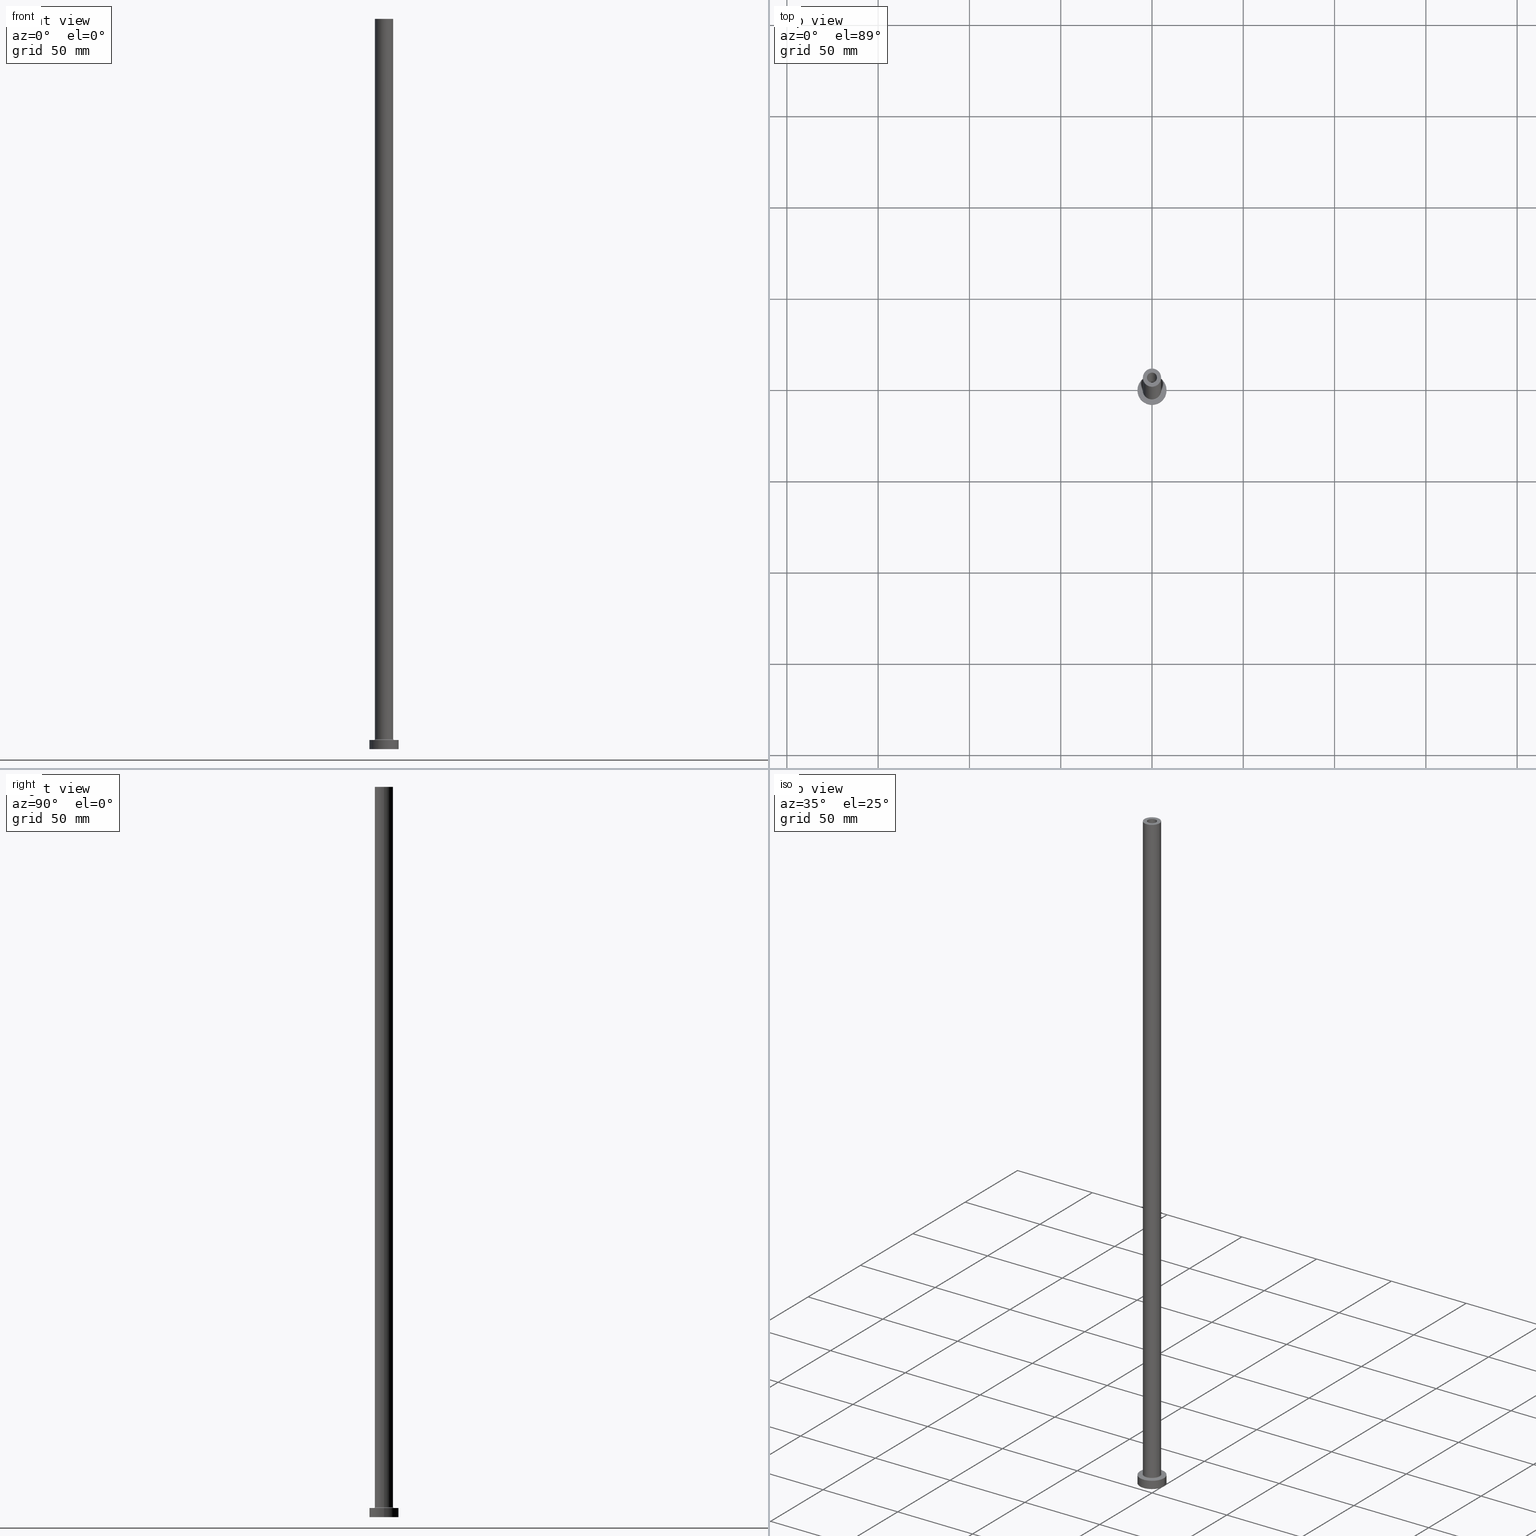
[diagram: canonical four-view strip — front | top / right | iso, engineering-drawing reading convention]
A machine part, canonical four-view strip (front | top / right | iso — engineering-drawing reading convention). The complete STEP part file that produces these views, byte-faithful:
ISO-10303-21;
HEADER;
FILE_DESCRIPTION (( 'STEP AP203' ),
    '1' );
FILE_NAME ('908a.STEP',
    '2023-02-13T16:12:54',
    ( '' ),
    ( '' ),
    'SwSTEP 2.0',
    'SolidWorks 2019',
    '' );
FILE_SCHEMA (( 'CONFIG_CONTROL_DESIGN' ));
ENDSEC;

DATA;
#1 = APPROVAL_ROLE ( '' ) ;
#2 = EDGE_LOOP ( 'NONE', ( #441, #38 ) ) ;
#3 = DIRECTION ( 'NONE',  ( -0.000000000000000000, -0.000000000000000000, -1.000000000000000000 ) ) ;
#4 = EDGE_LOOP ( 'NONE', ( #385, #153, #249, #202 ) ) ;
#5 = CARTESIAN_POINT ( 'NONE',  ( -2.750000000000000000, 0.000000000000000000, 400.0000000000000000 ) ) ;
#6 = DIRECTION ( 'NONE',  ( 1.000000000000000000, 0.000000000000000000, 0.000000000000000000 ) ) ;
#7 = CARTESIAN_POINT ( 'NONE',  ( 2.899999999999999911, 3.551475717527323832E-16, 355.0000000000000568 ) ) ;
#8 = LINE ( 'NONE', #43, #360 ) ;
#9 = ORIENTED_EDGE ( 'NONE', *, *, #185, .T. ) ;
#10 = EDGE_CURVE ( 'NONE', #380, #13, #144, .T. ) ;
#11 = AXIS2_PLACEMENT_3D ( 'NONE', #244, #3, #451 ) ;
#12 = CC_DESIGN_APPROVAL ( #203, ( #171 ) ) ;
#13 = VERTEX_POINT ( 'NONE', #7 ) ;
#14 = VERTEX_POINT ( 'NONE', #119 ) ;
#15 = DIRECTION ( 'NONE',  ( 0.000000000000000000, 0.000000000000000000, -1.000000000000000000 ) ) ;
#16 = DIRECTION ( 'NONE',  ( 1.000000000000000000, 0.000000000000000000, 0.000000000000000000 ) ) ;
#17 = AXIS2_PLACEMENT_3D ( 'NONE', #148, #214, #330 ) ;
#18 = EDGE_CURVE ( 'NONE', #273, #14, #404, .T. ) ;
#19 = VECTOR ( 'NONE', #169, 1000.000000000000000 ) ;
#20 = CARTESIAN_POINT ( 'NONE',  ( -2.750000000000000000, 0.000000000000000000, 355.0000000000000568 ) ) ;
#21 = CARTESIAN_POINT ( 'NONE',  ( 2.899999999999999911, 3.551475717527323832E-16, 0.000000000000000000 ) ) ;
#22 = EDGE_CURVE ( 'NONE', #273, #256, #359, .T. ) ;
#23 = AXIS2_PLACEMENT_3D ( 'NONE', #63, #342, #272 ) ;
#24 = CARTESIAN_POINT ( 'NONE',  ( 0.000000000000000000, 0.000000000000000000, 400.0000000000000000 ) ) ;
#25 = PERSON_AND_ORGANIZATION_ROLE ( 'classification_officer' ) ;
#26 = DIRECTION ( 'NONE',  ( 0.000000000000000000, 0.000000000000000000, 1.000000000000000000 ) ) ;
#27 = ORIENTED_EDGE ( 'NONE', *, *, #125, .F. ) ;
#28 =( LENGTH_UNIT ( ) NAMED_UNIT ( * ) SI_UNIT ( .MILLI., .METRE. ) );
#29 = CARTESIAN_POINT ( 'NONE',  ( 0.000000000000000000, 0.000000000000000000, 0.000000000000000000 ) ) ;
#30 = EDGE_LOOP ( 'NONE', ( #154, #150, #143, #242 ) ) ;
#31 = ADVANCED_FACE ( 'NONE', ( #438, #397 ), #251, .T. ) ;
#32 = CARTESIAN_POINT ( 'NONE',  ( -5.000000000000000000, 0.000000000000000000, 400.0000000000000000 ) ) ;
#33 = ORIENTED_EDGE ( 'NONE', *, *, #10, .F. ) ;
#34 = APPROVAL_PERSON_ORGANIZATION ( #347, #203, #1 ) ;
#35 = PERSON_AND_ORGANIZATION ( #285, #232 ) ;
#36 = ORIENTED_EDGE ( 'NONE', *, *, #356, .F. ) ;
#37 = EDGE_CURVE ( 'NONE', #13, #380, #149, .T. ) ;
#38 = ORIENTED_EDGE ( 'NONE', *, *, #427, .T. ) ;
#39 = FACE_OUTER_BOUND ( 'NONE', #328, .T. ) ;
#40 = AXIS2_PLACEMENT_3D ( 'NONE', #90, #226, #334 ) ;
#41 = VECTOR ( 'NONE', #413, 1000.000000000000000 ) ;
#42 = DIRECTION ( 'NONE',  ( 0.000000000000000000, 0.000000000000000000, 1.000000000000000000 ) ) ;
#43 = CARTESIAN_POINT ( 'NONE',  ( 8.000000000000000000, 9.797174393178825657E-16, 5.000000000000000000 ) ) ;
#44 = EDGE_CURVE ( 'NONE', #235, #278, #47, .T. ) ;
#45 = FACE_OUTER_BOUND ( 'NONE', #392, .T. ) ;
#46 = DIRECTION ( 'NONE',  ( -1.000000000000000000, 0.000000000000000000, 0.000000000000000000 ) ) ;
#47 = CIRCLE ( 'NONE', #263, 2.750000000000000000 ) ;
#48 = AXIS2_PLACEMENT_3D ( 'NONE', #29, #133, #142 ) ;
#49 = CIRCLE ( 'NONE', #157, 5.000000000000000000 ) ;
#50 = FACE_OUTER_BOUND ( 'NONE', #30, .T. ) ;
#51 = ORIENTED_EDGE ( 'NONE', *, *, #22, .T. ) ;
#52 = CARTESIAN_POINT ( 'NONE',  ( 0.000000000000000000, 0.000000000000000000, 0.000000000000000000 ) ) ;
#53 = DATE_AND_TIME ( #92, #193 ) ;
#54 = CIRCLE ( 'NONE', #236, 2.750000000000000000 ) ;
#55 = FACE_BOUND ( 'NONE', #2, .T. ) ;
#56 = TOROIDAL_SURFACE ( 'NONE', #74, 5.500000000000000000, 0.5000000000000000000 ) ;
#57 = ADVANCED_FACE ( 'NONE', ( #369 ), #212, .T. ) ;
#58 = CARTESIAN_POINT ( 'NONE',  ( 0.000000000000000000, 0.000000000000000000, 400.0000000000000000 ) ) ;
#59 = CARTESIAN_POINT ( 'NONE',  ( 0.000000000000000000, 0.000000000000000000, 5.000000000000000000 ) ) ;
#60 = AXIS2_PLACEMENT_3D ( 'NONE', #259, #364, #291 ) ;
#61 = DIRECTION ( 'NONE',  ( 0.000000000000000000, 0.000000000000000000, 1.000000000000000000 ) ) ;
#62 = PERSON_AND_ORGANIZATION ( #285, #232 ) ;
#63 = CARTESIAN_POINT ( 'NONE',  ( 0.000000000000000000, 0.000000000000000000, 400.0000000000000000 ) ) ;
#64 = EDGE_LOOP ( 'NONE', ( #350, #430 ) ) ;
#65 = FACE_OUTER_BOUND ( 'NONE', #317, .T. ) ;
#66 = DIRECTION ( 'NONE',  ( 1.000000000000000000, 0.000000000000000000, 0.000000000000000000 ) ) ;
#67 = ADVANCED_FACE ( 'NONE', ( #39 ), #79, .T. ) ;
#68 = ORIENTED_EDGE ( 'NONE', *, *, #160, .F. ) ;
#69 =( NAMED_UNIT ( * ) PLANE_ANGLE_UNIT ( ) SI_UNIT ( $, .RADIAN. ) );
#70 = VERTEX_POINT ( 'NONE', #113 ) ;
#71 = DIRECTION ( 'NONE',  ( 0.000000000000000000, 0.000000000000000000, -1.000000000000000000 ) ) ;
#72 = EDGE_LOOP ( 'NONE', ( #286, #107, #9, #261 ) ) ;
#73 = CIRCLE ( 'NONE', #292, 8.000000000000000000 ) ;
#74 = AXIS2_PLACEMENT_3D ( 'NONE', #302, #61, #456 ) ;
#75 = ORIENTED_EDGE ( 'NONE', *, *, #87, .F. ) ;
#76 = EDGE_CURVE ( 'NONE', #13, #357, #326, .T. ) ;
#77 = CARTESIAN_POINT ( 'NONE',  ( 0.000000000000000000, 0.000000000000000000, 400.0000000000000000 ) ) ;
#78 = CARTESIAN_POINT ( 'NONE',  ( -2.750000000000000000, 0.000000000000000000, 400.0000000000000000 ) ) ;
#79 = CYLINDRICAL_SURFACE ( 'NONE', #195, 8.000000000000000000 ) ;
#80 = AXIS2_PLACEMENT_3D ( 'NONE', #186, #264, #16 ) ;
#81 = VECTOR ( 'NONE', #378, 1000.000000000000000 ) ;
#82 = APPROVAL ( #111, 'NEUR�EN�' ) ;
#83 = DIRECTION ( 'NONE',  ( -0.000000000000000000, -0.000000000000000000, -1.000000000000000000 ) ) ;
#84 = CC_DESIGN_SECURITY_CLASSIFICATION ( #391, ( #171 ) ) ;
#85 = DIRECTION ( 'NONE',  ( -0.000000000000000000, -0.000000000000000000, -1.000000000000000000 ) ) ;
#86 = CARTESIAN_POINT ( 'NONE',  ( 0.000000000000000000, 0.000000000000000000, 5.000000000000000000 ) ) ;
#87 = EDGE_CURVE ( 'NONE', #382, #70, #405, .T. ) ;
#88 = CARTESIAN_POINT ( 'NONE',  ( 0.000000000000000000, 0.000000000000000000, 5.000000000000000000 ) ) ;
#89 = ORIENTED_EDGE ( 'NONE', *, *, #37, .F. ) ;
#90 = CARTESIAN_POINT ( 'NONE',  ( 0.000000000000000000, 0.000000000000000000, 400.0000000000000000 ) ) ;
#91 = DIRECTION ( 'NONE',  ( -1.000000000000000000, 0.000000000000000000, 0.000000000000000000 ) ) ;
#92 = CALENDAR_DATE ( 2023, 13, 2 ) ;
#93 = VECTOR ( 'NONE', #453, 1000.000000000000000 ) ;
#94 = DIRECTION ( 'NONE',  ( 0.000000000000000000, 0.000000000000000000, 1.000000000000000000 ) ) ;
#95 = EDGE_CURVE ( 'NONE', #178, #382, #8, .T. ) ;
#96 = CYLINDRICAL_SURFACE ( 'NONE', #206, 2.899999999999999911 ) ;
#97 = EDGE_LOOP ( 'NONE', ( #455, #105, #175, #51 ) ) ;
#98 = CARTESIAN_POINT ( 'NONE',  ( 0.000000000000000000, 0.000000000000000000, 5.500000000000005329 ) ) ;
#99 = EDGE_CURVE ( 'NONE', #118, #178, #431, .T. ) ;
#100 = DATE_AND_TIME ( #384, #151 ) ;
#101 = AXIS2_PLACEMENT_3D ( 'NONE', #24, #265, #419 ) ;
#102 = VERTEX_POINT ( 'NONE', #123 ) ;
#103 = LINE ( 'NONE', #139, #19 ) ;
#104 = CARTESIAN_POINT ( 'NONE',  ( 0.000000000000000000, 0.000000000000000000, 0.000000000000000000 ) ) ;
#105 = ORIENTED_EDGE ( 'NONE', *, *, #417, .F. ) ;
#106 = DIRECTION ( 'NONE',  ( 1.000000000000000000, 0.000000000000000000, 0.000000000000000000 ) ) ;
#107 = ORIENTED_EDGE ( 'NONE', *, *, #44, .T. ) ;
#108 = APPROVAL_ROLE ( '' ) ;
#109 = ORIENTED_EDGE ( 'NONE', *, *, #417, .T. ) ;
#110 = ADVANCED_FACE ( 'NONE', ( #155, #335 ), #407, .F. ) ;
#111 = APPROVAL_STATUS ( 'not_yet_approved' ) ;
#112 = ORIENTED_EDGE ( 'NONE', *, *, #95, .T. ) ;
#113 = CARTESIAN_POINT ( 'NONE',  ( -8.000000000000000000, 0.000000000000000000, 0.000000000000000000 ) ) ;
#114 = DIRECTION ( 'NONE',  ( -0.000000000000000000, -0.000000000000000000, -1.000000000000000000 ) ) ;
#115 = ADVANCED_FACE ( 'NONE', ( #50 ), #194, .F. ) ;
#116 = DIRECTION ( 'NONE',  ( 1.000000000000000000, 0.000000000000000000, 0.000000000000000000 ) ) ;
#117 =( GEOMETRIC_REPRESENTATION_CONTEXT ( 3 ) GLOBAL_UNCERTAINTY_ASSIGNED_CONTEXT ( ( #252 ) ) GLOBAL_UNIT_ASSIGNED_CONTEXT ( ( #28, #69, #386 ) ) REPRESENTATION_CONTEXT ( 'NONE', 'WORKASPACE' ) );
#118 = VERTEX_POINT ( 'NONE', #409 ) ;
#119 = CARTESIAN_POINT ( 'NONE',  ( -5.500000000000000000, 6.735557395310442023E-16, 5.000000000000002665 ) ) ;
#120 = AXIS2_PLACEMENT_3D ( 'NONE', #222, #258, #440 ) ;
#121 = DIRECTION ( 'NONE',  ( 0.000000000000000000, -1.000000000000000000, 0.000000000000000000 ) ) ;
#122 = CIRCLE ( 'NONE', #80, 5.500000000000000000 ) ;
#123 = CARTESIAN_POINT ( 'NONE',  ( 2.750000000000000000, 3.367778697655220519E-16, 355.0000000000000568 ) ) ;
#124 = LOCAL_TIME ( 17, 12, 54.00000000000000000, #271 ) ;
#125 = EDGE_CURVE ( 'NONE', #127, #14, #122, .T. ) ;
#126 = APPROVAL_PERSON_ORGANIZATION ( #433, #82, #322 ) ;
#127 = VERTEX_POINT ( 'NONE', #188 ) ;
#128 = EDGE_CURVE ( 'NONE', #238, #102, #54, .T. ) ;
#129 = SHAPE_DEFINITION_REPRESENTATION ( #301, #221 ) ;
#130 = VERTEX_POINT ( 'NONE', #163 ) ;
#131 = CARTESIAN_POINT ( 'NONE',  ( 0.000000000000000000, 0.000000000000000000, 363.2024386617640062 ) ) ;
#132 = PLANE ( 'NONE',  #458 ) ;
#133 = DIRECTION ( 'NONE',  ( -0.000000000000000000, -0.000000000000000000, -1.000000000000000000 ) ) ;
#134 = AXIS2_PLACEMENT_3D ( 'NONE', #253, #365, #368 ) ;
#135 = ORIENTED_EDGE ( 'NONE', *, *, #408, .T. ) ;
#136 = DIRECTION ( 'NONE',  ( -0.000000000000000000, -0.000000000000000000, -1.000000000000000000 ) ) ;
#137 = PERSON_AND_ORGANIZATION ( #285, #232 ) ;
#138 = ORIENTED_EDGE ( 'NONE', *, *, #331, .T. ) ;
#139 = CARTESIAN_POINT ( 'NONE',  ( 2.750000000000000000, 3.367778697655220519E-16, 400.0000000000000000 ) ) ;
#140 = CALENDAR_DATE ( 2023, 13, 2 ) ;
#141 = ADVANCED_FACE ( 'NONE', ( #446, #295 ), #443, .T. ) ;
#142 = DIRECTION ( 'NONE',  ( 1.000000000000000000, 0.000000000000000000, 0.000000000000000000 ) ) ;
#143 = ORIENTED_EDGE ( 'NONE', *, *, #177, .T. ) ;
#144 = CIRCLE ( 'NONE', #17, 2.899999999999999911 ) ;
#145 = DIRECTION ( 'NONE',  ( 0.000000000000000000, 0.000000000000000000, 1.000000000000000000 ) ) ;
#146 = DIRECTION ( 'NONE',  ( 1.000000000000000000, 0.000000000000000000, 0.000000000000000000 ) ) ;
#147 = ADVANCED_FACE ( 'NONE', ( #156 ), #167, .F. ) ;
#148 = CARTESIAN_POINT ( 'NONE',  ( 0.000000000000000000, 0.000000000000000000, 355.0000000000000568 ) ) ;
#149 = CIRCLE ( 'NONE', #398, 2.899999999999999911 ) ;
#150 = ORIENTED_EDGE ( 'NONE', *, *, #76, .T. ) ;
#151 = LOCAL_TIME ( 17, 12, 54.00000000000000000, #234 ) ;
#152 = CC_DESIGN_APPROVAL ( #303, ( #391 ) ) ;
#153 = ORIENTED_EDGE ( 'NONE', *, *, #37, .T. ) ;
#154 = ORIENTED_EDGE ( 'NONE', *, *, #10, .T. ) ;
#155 = FACE_BOUND ( 'NONE', #434, .T. ) ;
#156 = FACE_OUTER_BOUND ( 'NONE', #308, .T. ) ;
#157 = AXIS2_PLACEMENT_3D ( 'NONE', #58, #279, #243 ) ;
#158 = DESIGN_CONTEXT ( 'detailed design', #313, 'design' ) ;
#159 = CARTESIAN_POINT ( 'NONE',  ( 0.000000000000000000, 0.000000000000000000, 400.0000000000000000 ) ) ;
#160 = EDGE_CURVE ( 'NONE', #130, #357, #390, .T. ) ;
#161 = LINE ( 'NONE', #32, #93 ) ;
#162 = DIRECTION ( 'NONE',  ( 1.000000000000000000, 0.000000000000000000, 0.000000000000000000 ) ) ;
#163 = CARTESIAN_POINT ( 'NONE',  ( -2.899999999999999911, 0.000000000000000000, 0.000000000000000000 ) ) ;
#164 = AXIS2_PLACEMENT_3D ( 'NONE', #98, #345, #239 ) ;
#165 = CARTESIAN_POINT ( 'NONE',  ( 0.000000000000000000, 0.000000000000000000, 355.0000000000000568 ) ) ;
#166 = ORIENTED_EDGE ( 'NONE', *, *, #18, .F. ) ;
#167 = CYLINDRICAL_SURFACE ( 'NONE', #411, 2.750000000000000000 ) ;
#168 = ORIENTED_EDGE ( 'NONE', *, *, #363, .F. ) ;
#169 = DIRECTION ( 'NONE',  ( 0.000000000000000000, 0.000000000000000000, -1.000000000000000000 ) ) ;
#170 = PERSON_AND_ORGANIZATION_ROLE ( 'creator' ) ;
#171 = PRODUCT_DEFINITION_FORMATION_WITH_SPECIFIED_SOURCE ( 'LIBOVOLN�', '', #182, .NOT_KNOWN. ) ;
#172 = ORIENTED_EDGE ( 'NONE', *, *, #435, .T. ) ;
#173 = CC_DESIGN_PERSON_AND_ORGANIZATION_ASSIGNMENT ( #137, #280, ( #171 ) ) ;
#174 = COORDINATED_UNIVERSAL_TIME_OFFSET ( 1, 0, .AHEAD. ) ;
#175 = ORIENTED_EDGE ( 'NONE', *, *, #356, .T. ) ;
#176 = EDGE_LOOP ( 'NONE', ( #394, #75 ) ) ;
#177 = EDGE_CURVE ( 'NONE', #357, #130, #247, .T. ) ;
#178 = VERTEX_POINT ( 'NONE', #283 ) ;
#179 = APPLICATION_PROTOCOL_DEFINITION ( 'international standard', 'config_control_design', 1994, #313 ) ;
#180 = DIRECTION ( 'NONE',  ( 0.000000000000000000, 0.000000000000000000, 1.000000000000000000 ) ) ;
#181 = CARTESIAN_POINT ( 'NONE',  ( 0.000000000000000000, 0.000000000000000000, 5.000000000000000000 ) ) ;
#182 = PRODUCT ( '908a', '908a', '', ( #229 ) ) ;
#183 = DIRECTION ( 'NONE',  ( 0.000000000000000000, 0.000000000000000000, 1.000000000000000000 ) ) ;
#184 = LOCAL_TIME ( 17, 12, 54.00000000000000000, #174 ) ;
#185 = EDGE_CURVE ( 'NONE', #278, #238, #396, .T. ) ;
#186 = CARTESIAN_POINT ( 'NONE',  ( 0.000000000000000000, 0.000000000000000000, 5.000000000000000000 ) ) ;
#187 = DIRECTION ( 'NONE',  ( -0.000000000000000000, -0.000000000000000000, -1.000000000000000000 ) ) ;
#188 = CARTESIAN_POINT ( 'NONE',  ( 5.500000000000000000, 0.000000000000000000, 5.000000000000002665 ) ) ;
#189 = DIRECTION ( 'NONE',  ( 1.000000000000000000, 0.000000000000000000, -0.000000000000000000 ) ) ;
#190 = CC_DESIGN_PERSON_AND_ORGANIZATION_ASSIGNMENT ( #219, #319, ( #182 ) ) ;
#191 = CIRCLE ( 'NONE', #23, 2.750000000000000000 ) ;
#192 = LINE ( 'NONE', #230, #41 ) ;
#193 = LOCAL_TIME ( 17, 12, 54.00000000000000000, #325 ) ;
#194 = CYLINDRICAL_SURFACE ( 'NONE', #336, 2.899999999999999911 ) ;
#195 = AXIS2_PLACEMENT_3D ( 'NONE', #436, #83, #46 ) ;
#196 = DATE_AND_TIME ( #246, #124 ) ;
#197 = ORIENTED_EDGE ( 'NONE', *, *, #290, .F. ) ;
#198 = CALENDAR_DATE ( 2023, 13, 2 ) ;
#199 = DIRECTION ( 'NONE',  ( 0.000000000000000000, 0.000000000000000000, -1.000000000000000000 ) ) ;
#200 = ORIENTED_EDGE ( 'NONE', *, *, #250, .T. ) ;
#201 = PERSON_AND_ORGANIZATION ( #285, #232 ) ;
#202 = ORIENTED_EDGE ( 'NONE', *, *, #160, .T. ) ;
#203 = APPROVAL ( #387, 'NEUR�EN�' ) ;
#204 = LINE ( 'NONE', #254, #81 ) ;
#205 = SECURITY_CLASSIFICATION_LEVEL ( 'unclassified' ) ;
#206 = AXIS2_PLACEMENT_3D ( 'NONE', #131, #71, #383 ) ;
#207 = ORIENTED_EDGE ( 'NONE', *, *, #408, .F. ) ;
#208 = APPLICATION_PROTOCOL_DEFINITION ( 'international standard', 'config_control_design', 1994, #288 ) ;
#209 = PERSON_AND_ORGANIZATION_ROLE ( 'creator' ) ;
#210 = EDGE_LOOP ( 'NONE', ( #457, #352 ) ) ;
#211 = ADVANCED_FACE ( 'NONE', ( #447 ), #225, .F. ) ;
#212 = CYLINDRICAL_SURFACE ( 'NONE', #297, 5.000000000000000000 ) ;
#213 = AXIS2_PLACEMENT_3D ( 'NONE', #86, #180, #218 ) ;
#214 = DIRECTION ( 'NONE',  ( 0.000000000000000000, 0.000000000000000000, 1.000000000000000000 ) ) ;
#215 = AXIS2_PLACEMENT_3D ( 'NONE', #88, #187, #91 ) ;
#216 = DIRECTION ( 'NONE',  ( -1.000000000000000000, 1.224646799147351482E-16, 0.000000000000000000 ) ) ;
#217 = CARTESIAN_POINT ( 'NONE',  ( 5.000000000000000000, 6.123233995736765296E-16, 400.0000000000000000 ) ) ;
#218 = DIRECTION ( 'NONE',  ( 1.000000000000000000, 0.000000000000000000, -0.000000000000000000 ) ) ;
#219 = PERSON_AND_ORGANIZATION ( #285, #232 ) ;
#220 = PRODUCT_RELATED_PRODUCT_CATEGORY ( 'detail', '', ( #182 ) ) ;
#221 = ADVANCED_BREP_SHAPE_REPRESENTATION ( '908a', ( #237, #134 ), #117 ) ;
#222 = CARTESIAN_POINT ( 'NONE',  ( 0.000000000000000000, 0.000000000000000000, 0.000000000000000000 ) ) ;
#223 = TOROIDAL_SURFACE ( 'NONE', #298, 5.500000000000000000, 0.5000000000000000000 ) ;
#224 = ORIENTED_EDGE ( 'NONE', *, *, #177, .F. ) ;
#225 = CYLINDRICAL_SURFACE ( 'NONE', #315, 2.750000000000000000 ) ;
#226 = DIRECTION ( 'NONE',  ( 0.000000000000000000, 0.000000000000000000, 1.000000000000000000 ) ) ;
#227 = ADVANCED_FACE ( 'NONE', ( #348 ), #223, .F. ) ;
#228 = DIRECTION ( 'NONE',  ( 0.000000000000000000, 0.000000000000000000, -1.000000000000000000 ) ) ;
#229 = MECHANICAL_CONTEXT ( 'NONE', #288, 'mechanical' ) ;
#230 = CARTESIAN_POINT ( 'NONE',  ( -2.899999999999999911, 0.000000000000000000, 363.2024386617640062 ) ) ;
#231 = DIRECTION ( 'NONE',  ( -1.000000000000000000, 0.000000000000000000, 0.000000000000000000 ) ) ;
#232 = ORGANIZATION ( 'NEUR�EN�', 'NEUR�EN�', '' ) ;
#233 = DIRECTION ( 'NONE',  ( 1.000000000000000000, 0.000000000000000000, 0.000000000000000000 ) ) ;
#234 = COORDINATED_UNIVERSAL_TIME_OFFSET ( 1, 0, .AHEAD. ) ;
#235 = VERTEX_POINT ( 'NONE', #379 ) ;
#236 = AXIS2_PLACEMENT_3D ( 'NONE', #410, #94, #233 ) ;
#237 = MANIFOLD_SOLID_BREP ( 'Odebrat vysunut�m4', #340 ) ;
#238 = VERTEX_POINT ( 'NONE', #20 ) ;
#239 = DIRECTION ( 'NONE',  ( 1.000000000000000000, 0.000000000000000000, 0.000000000000000000 ) ) ;
#240 = CARTESIAN_POINT ( 'NONE',  ( -2.899999999999999911, 0.000000000000000000, 355.0000000000000568 ) ) ;
#241 = COORDINATED_UNIVERSAL_TIME_OFFSET ( 1, 0, .AHEAD. ) ;
#242 = ORIENTED_EDGE ( 'NONE', *, *, #312, .F. ) ;
#243 = DIRECTION ( 'NONE',  ( 1.000000000000000000, 0.000000000000000000, 0.000000000000000000 ) ) ;
#244 = CARTESIAN_POINT ( 'NONE',  ( 0.000000000000000000, 0.000000000000000000, 0.000000000000000000 ) ) ;
#245 = EDGE_LOOP ( 'NONE', ( #284, #425 ) ) ;
#246 = CALENDAR_DATE ( 2023, 13, 2 ) ;
#247 = CIRCLE ( 'NONE', #48, 2.899999999999999911 ) ;
#248 = CIRCLE ( 'NONE', #412, 8.000000000000000000 ) ;
#249 = ORIENTED_EDGE ( 'NONE', *, *, #312, .T. ) ;
#250 = EDGE_CURVE ( 'NONE', #278, #235, #191, .T. ) ;
#251 = PLANE ( 'NONE',  #213 ) ;
#252 = UNCERTAINTY_MEASURE_WITH_UNIT (LENGTH_MEASURE( 1.000000000000000082E-05 ), #28, 'distance_accuracy_value', 'NONE');
#253 = CARTESIAN_POINT ( 'NONE',  ( 0.000000000000000000, 0.000000000000000000, 0.000000000000000000 ) ) ;
#254 = CARTESIAN_POINT ( 'NONE',  ( 5.000000000000000000, 6.123233995736765296E-16, 400.0000000000000000 ) ) ;
#255 = CARTESIAN_POINT ( 'NONE',  ( 0.000000000000000000, 0.000000000000000000, 355.0000000000000568 ) ) ;
#256 = VERTEX_POINT ( 'NONE', #304 ) ;
#257 = CC_DESIGN_PERSON_AND_ORGANIZATION_ASSIGNMENT ( #35, #25, ( #391 ) ) ;
#258 = DIRECTION ( 'NONE',  ( 0.000000000000000000, 0.000000000000000000, 1.000000000000000000 ) ) ;
#259 = CARTESIAN_POINT ( 'NONE',  ( 0.000000000000000000, 0.000000000000000000, 5.500000000000005329 ) ) ;
#260 = AXIS2_PLACEMENT_3D ( 'NONE', #367, #321, #216 ) ;
#261 = ORIENTED_EDGE ( 'NONE', *, *, #427, .F. ) ;
#262 = ADVANCED_FACE ( 'NONE', ( #55, #377 ), #132, .F. ) ;
#263 = AXIS2_PLACEMENT_3D ( 'NONE', #77, #42, #146 ) ;
#264 = DIRECTION ( 'NONE',  ( -0.000000000000000000, -0.000000000000000000, -1.000000000000000000 ) ) ;
#265 = DIRECTION ( 'NONE',  ( -0.000000000000000000, -0.000000000000000000, -1.000000000000000000 ) ) ;
#266 = CIRCLE ( 'NONE', #421, 5.500000000000000000 ) ;
#267 = DIRECTION ( 'NONE',  ( 1.000000000000000000, 0.000000000000000000, -0.000000000000000000 ) ) ;
#268 = EDGE_CURVE ( 'NONE', #178, #118, #73, .T. ) ;
#269 = CYLINDRICAL_SURFACE ( 'NONE', #101, 5.000000000000000000 ) ;
#270 = EDGE_LOOP ( 'NONE', ( #33, #89 ) ) ;
#271 = COORDINATED_UNIVERSAL_TIME_OFFSET ( 1, 0, .AHEAD. ) ;
#272 = DIRECTION ( 'NONE',  ( 1.000000000000000000, 0.000000000000000000, 0.000000000000000000 ) ) ;
#273 = VERTEX_POINT ( 'NONE', #424 ) ;
#274 = CARTESIAN_POINT ( 'NONE',  ( 8.000000000000000000, 9.797174393178825657E-16, 0.000000000000000000 ) ) ;
#275 = EDGE_CURVE ( 'NONE', #70, #382, #248, .T. ) ;
#276 = CIRCLE ( 'NONE', #399, 5.000000000000000000 ) ;
#277 = DIRECTION ( 'NONE',  ( 1.000000000000000000, 0.000000000000000000, 0.000000000000000000 ) ) ;
#278 = VERTEX_POINT ( 'NONE', #78 ) ;
#279 = DIRECTION ( 'NONE',  ( 0.000000000000000000, 0.000000000000000000, 1.000000000000000000 ) ) ;
#280 = PERSON_AND_ORGANIZATION_ROLE ( 'design_supplier' ) ;
#281 = VERTEX_POINT ( 'NONE', #217 ) ;
#282 = DATE_TIME_ROLE ( 'classification_date' ) ;
#283 = CARTESIAN_POINT ( 'NONE',  ( 8.000000000000000000, 9.797174393178825657E-16, 5.000000000000000000 ) ) ;
#284 = ORIENTED_EDGE ( 'NONE', *, *, #250, .F. ) ;
#285 = PERSON ( 'NEUR�EN�', 'NEUR�EN�', 'NEUR�EN�', ('NEUR�EN�'), ('NEUR�EN�'), ('NEUR�EN�') ) ;
#286 = ORIENTED_EDGE ( 'NONE', *, *, #395, .F. ) ;
#287 = DIRECTION ( 'NONE',  ( -1.000000000000000000, 0.000000000000000000, 0.000000000000000000 ) ) ;
#288 = APPLICATION_CONTEXT ( 'configuration controlled 3d designs of mechanical parts and assemblies' ) ;
#289 = ORIENTED_EDGE ( 'NONE', *, *, #452, .T. ) ;
#290 = EDGE_CURVE ( 'NONE', #14, #127, #266, .T. ) ;
#291 = DIRECTION ( 'NONE',  ( 1.000000000000000000, 0.000000000000000000, 0.000000000000000000 ) ) ;
#292 = AXIS2_PLACEMENT_3D ( 'NONE', #59, #310, #277 ) ;
#293 = ORIENTED_EDGE ( 'NONE', *, *, #452, .F. ) ;
#294 = ORIENTED_EDGE ( 'NONE', *, *, #95, .F. ) ;
#295 = FACE_OUTER_BOUND ( 'NONE', #332, .T. ) ;
#296 = ADVANCED_FACE ( 'NONE', ( #45 ), #329, .T. ) ;
#297 = AXIS2_PLACEMENT_3D ( 'NONE', #400, #358, #287 ) ;
#298 = AXIS2_PLACEMENT_3D ( 'NONE', #450, #415, #162 ) ;
#299 = AXIS2_PLACEMENT_3D ( 'NONE', #333, #121, #15 ) ;
#300 = DIRECTION ( 'NONE',  ( 0.000000000000000000, 0.000000000000000000, -1.000000000000000000 ) ) ;
#301 = PRODUCT_DEFINITION_SHAPE ( 'NONE', 'NONE',  #327 ) ;
#302 = CARTESIAN_POINT ( 'NONE',  ( 0.000000000000000000, 0.000000000000000000, 5.500000000000005329 ) ) ;
#303 = APPROVAL ( #429, 'NEUR�EN�' ) ;
#304 = CARTESIAN_POINT ( 'NONE',  ( 5.000000000000000000, 6.123233995736765296E-16, 5.500000000000005329 ) ) ;
#305 = VECTOR ( 'NONE', #323, 1000.000000000000000 ) ;
#306 = VECTOR ( 'NONE', #324, 1000.000000000000000 ) ;
#307 = CARTESIAN_POINT ( 'NONE',  ( 0.000000000000000000, 0.000000000000000000, 400.0000000000000000 ) ) ;
#308 = EDGE_LOOP ( 'NONE', ( #200, #314, #355, #402 ) ) ;
#309 = DATE_AND_TIME ( #198, #432 ) ;
#310 = DIRECTION ( 'NONE',  ( 0.000000000000000000, 0.000000000000000000, 1.000000000000000000 ) ) ;
#311 = EDGE_LOOP ( 'NONE', ( #166, #293, #138, #197 ) ) ;
#312 = EDGE_CURVE ( 'NONE', #380, #130, #192, .T. ) ;
#313 = APPLICATION_CONTEXT ( 'configuration controlled 3d designs of mechanical parts and assemblies' ) ;
#314 = ORIENTED_EDGE ( 'NONE', *, *, #395, .T. ) ;
#315 = AXIS2_PLACEMENT_3D ( 'NONE', #159, #228, #454 ) ;
#316 = PERSON_AND_ORGANIZATION ( #285, #232 ) ;
#317 = EDGE_LOOP ( 'NONE', ( #168, #172, #289, #36 ) ) ;
#318 = CARTESIAN_POINT ( 'NONE',  ( 0.000000000000000000, 0.000000000000000000, 355.0000000000000568 ) ) ;
#319 = PERSON_AND_ORGANIZATION_ROLE ( 'design_owner' ) ;
#320 = VERTEX_POINT ( 'NONE', #444 ) ;
#321 = DIRECTION ( 'NONE',  ( 1.224646799147353207E-16, 1.000000000000000000, -0.000000000000000000 ) ) ;
#322 = APPROVAL_ROLE ( '' ) ;
#323 = DIRECTION ( 'NONE',  ( 0.000000000000000000, 0.000000000000000000, -1.000000000000000000 ) ) ;
#324 = DIRECTION ( 'NONE',  ( 0.000000000000000000, 0.000000000000000000, -1.000000000000000000 ) ) ;
#325 = COORDINATED_UNIVERSAL_TIME_OFFSET ( 1, 0, .AHEAD. ) ;
#326 = LINE ( 'NONE', #403, #305 ) ;
#327 = PRODUCT_DEFINITION ( 'NEZN�M�', '', #171, #158 ) ;
#328 = EDGE_LOOP ( 'NONE', ( #420, #112, #406, #207 ) ) ;
#329 = CYLINDRICAL_SURFACE ( 'NONE', #215, 8.000000000000000000 ) ;
#330 = DIRECTION ( 'NONE',  ( 1.000000000000000000, 0.000000000000000000, 0.000000000000000000 ) ) ;
#331 = EDGE_CURVE ( 'NONE', #256, #127, #439, .T. ) ;
#332 = EDGE_LOOP ( 'NONE', ( #109, #372 ) ) ;
#333 = CARTESIAN_POINT ( 'NONE',  ( 5.500000000000000000, 0.000000000000000000, 5.500000000000005329 ) ) ;
#334 = DIRECTION ( 'NONE',  ( 1.000000000000000000, 0.000000000000000000, -0.000000000000000000 ) ) ;
#335 = FACE_OUTER_BOUND ( 'NONE', #176, .T. ) ;
#336 = AXIS2_PLACEMENT_3D ( 'NONE', #416, #300, #231 ) ;
#337 = CIRCLE ( 'NONE', #374, 2.750000000000000000 ) ;
#338 = FACE_OUTER_BOUND ( 'NONE', #428, .T. ) ;
#339 = CC_DESIGN_PERSON_AND_ORGANIZATION_ASSIGNMENT ( #201, #209, ( #171 ) ) ;
#340 = CLOSED_SHELL ( 'NONE', ( #147, #115, #343, #445, #67, #296, #31, #110, #57, #141, #227, #371, #262, #211 ) ) ;
#341 = APPROVAL_DATE_TIME ( #196, #303 ) ;
#342 = DIRECTION ( 'NONE',  ( 0.000000000000000000, 0.000000000000000000, 1.000000000000000000 ) ) ;
#343 = ADVANCED_FACE ( 'NONE', ( #338 ), #56, .F. ) ;
#344 = ORIENTED_EDGE ( 'NONE', *, *, #18, .T. ) ;
#345 = DIRECTION ( 'NONE',  ( 0.000000000000000000, 0.000000000000000000, 1.000000000000000000 ) ) ;
#346 = FACE_OUTER_BOUND ( 'NONE', #4, .T. ) ;
#347 = PERSON_AND_ORGANIZATION ( #285, #232 ) ;
#348 = FACE_OUTER_BOUND ( 'NONE', #311, .T. ) ;
#349 = DIRECTION ( 'NONE',  ( -1.000000000000000000, 0.000000000000000000, 0.000000000000000000 ) ) ;
#350 = ORIENTED_EDGE ( 'NONE', *, *, #99, .T. ) ;
#351 = APPROVAL_DATE_TIME ( #100, #203 ) ;
#352 = ORIENTED_EDGE ( 'NONE', *, *, #290, .T. ) ;
#353 = AXIS2_PLACEMENT_3D ( 'NONE', #52, #375, #189 ) ;
#354 = DATE_TIME_ROLE ( 'creation_date' ) ;
#355 = ORIENTED_EDGE ( 'NONE', *, *, #128, .F. ) ;
#356 = EDGE_CURVE ( 'NONE', #320, #273, #161, .T. ) ;
#357 = VERTEX_POINT ( 'NONE', #21 ) ;
#358 = DIRECTION ( 'NONE',  ( -0.000000000000000000, -0.000000000000000000, -1.000000000000000000 ) ) ;
#359 = CIRCLE ( 'NONE', #60, 5.000000000000000000 ) ;
#360 = VECTOR ( 'NONE', #85, 1000.000000000000000 ) ;
#361 = AXIS2_PLACEMENT_3D ( 'NONE', #181, #183, #6 ) ;
#362 = CIRCLE ( 'NONE', #164, 5.000000000000000000 ) ;
#363 = EDGE_CURVE ( 'NONE', #281, #320, #276, .T. ) ;
#364 = DIRECTION ( 'NONE',  ( 0.000000000000000000, 0.000000000000000000, 1.000000000000000000 ) ) ;
#365 = DIRECTION ( 'NONE',  ( 0.000000000000000000, 0.000000000000000000, 1.000000000000000000 ) ) ;
#366 = DIRECTION ( 'NONE',  ( 1.000000000000000000, 0.000000000000000000, 0.000000000000000000 ) ) ;
#367 = CARTESIAN_POINT ( 'NONE',  ( -5.500000000000000000, 6.735557395310442023E-16, 5.500000000000005329 ) ) ;
#368 = DIRECTION ( 'NONE',  ( 1.000000000000000000, 0.000000000000000000, 0.000000000000000000 ) ) ;
#369 = FACE_OUTER_BOUND ( 'NONE', #97, .T. ) ;
#370 = ORIENTED_EDGE ( 'NONE', *, *, #99, .F. ) ;
#371 = ADVANCED_FACE ( 'NONE', ( #346 ), #96, .F. ) ;
#372 = ORIENTED_EDGE ( 'NONE', *, *, #363, .T. ) ;
#373 = CC_DESIGN_DATE_AND_TIME_ASSIGNMENT ( #309, #354, ( #327 ) ) ;
#374 = AXIS2_PLACEMENT_3D ( 'NONE', #318, #426, #106 ) ;
#375 = DIRECTION ( 'NONE',  ( 0.000000000000000000, 0.000000000000000000, 1.000000000000000000 ) ) ;
#376 = LINE ( 'NONE', #460, #448 ) ;
#377 = FACE_OUTER_BOUND ( 'NONE', #270, .T. ) ;
#378 = DIRECTION ( 'NONE',  ( -0.000000000000000000, -0.000000000000000000, -1.000000000000000000 ) ) ;
#379 = CARTESIAN_POINT ( 'NONE',  ( 2.750000000000000000, 3.367778697655220519E-16, 400.0000000000000000 ) ) ;
#380 = VERTEX_POINT ( 'NONE', #240 ) ;
#381 = DATE_AND_TIME ( #140, #184 ) ;
#382 = VERTEX_POINT ( 'NONE', #274 ) ;
#383 = DIRECTION ( 'NONE',  ( -1.000000000000000000, 0.000000000000000000, 0.000000000000000000 ) ) ;
#384 = CALENDAR_DATE ( 2023, 13, 2 ) ;
#385 = ORIENTED_EDGE ( 'NONE', *, *, #76, .F. ) ;
#386 =( NAMED_UNIT ( * ) SI_UNIT ( $, .STERADIAN. ) SOLID_ANGLE_UNIT ( ) );
#387 = APPROVAL_STATUS ( 'not_yet_approved' ) ;
#388 = ORIENTED_EDGE ( 'NONE', *, *, #22, .F. ) ;
#389 = CC_DESIGN_DATE_AND_TIME_ASSIGNMENT ( #381, #282, ( #391 ) ) ;
#390 = CIRCLE ( 'NONE', #11, 2.899999999999999911 ) ;
#391 = SECURITY_CLASSIFICATION ( '', '', #205 ) ;
#392 = EDGE_LOOP ( 'NONE', ( #294, #370, #135, #442 ) ) ;
#393 = DIRECTION ( 'NONE',  ( 0.000000000000000000, 0.000000000000000000, 1.000000000000000000 ) ) ;
#394 = ORIENTED_EDGE ( 'NONE', *, *, #275, .F. ) ;
#395 = EDGE_CURVE ( 'NONE', #235, #102, #103, .T. ) ;
#396 = LINE ( 'NONE', #5, #306 ) ;
#397 = FACE_OUTER_BOUND ( 'NONE', #64, .T. ) ;
#398 = AXIS2_PLACEMENT_3D ( 'NONE', #255, #145, #116 ) ;
#399 = AXIS2_PLACEMENT_3D ( 'NONE', #422, #449, #66 ) ;
#400 = CARTESIAN_POINT ( 'NONE',  ( 0.000000000000000000, 0.000000000000000000, 400.0000000000000000 ) ) ;
#401 = DIRECTION ( 'NONE',  ( 1.000000000000000000, 0.000000000000000000, 0.000000000000000000 ) ) ;
#402 = ORIENTED_EDGE ( 'NONE', *, *, #185, .F. ) ;
#403 = CARTESIAN_POINT ( 'NONE',  ( 2.899999999999999911, 3.551475717527323832E-16, 363.2024386617640062 ) ) ;
#404 = CIRCLE ( 'NONE', #260, 0.5000000000000004441 ) ;
#405 = CIRCLE ( 'NONE', #120, 8.000000000000000000 ) ;
#406 = ORIENTED_EDGE ( 'NONE', *, *, #87, .T. ) ;
#407 = PLANE ( 'NONE',  #353 ) ;
#408 = EDGE_CURVE ( 'NONE', #118, #70, #376, .T. ) ;
#409 = CARTESIAN_POINT ( 'NONE',  ( -8.000000000000000000, 0.000000000000000000, 5.000000000000000000 ) ) ;
#410 = CARTESIAN_POINT ( 'NONE',  ( 0.000000000000000000, 0.000000000000000000, 355.0000000000000568 ) ) ;
#411 = AXIS2_PLACEMENT_3D ( 'NONE', #307, #199, #349 ) ;
#412 = AXIS2_PLACEMENT_3D ( 'NONE', #104, #393, #401 ) ;
#413 = DIRECTION ( 'NONE',  ( 0.000000000000000000, 0.000000000000000000, -1.000000000000000000 ) ) ;
#414 = APPROVAL_PERSON_ORGANIZATION ( #62, #303, #108 ) ;
#415 = DIRECTION ( 'NONE',  ( 0.000000000000000000, 0.000000000000000000, 1.000000000000000000 ) ) ;
#416 = CARTESIAN_POINT ( 'NONE',  ( 0.000000000000000000, 0.000000000000000000, 363.2024386617640062 ) ) ;
#417 = EDGE_CURVE ( 'NONE', #320, #281, #49, .T. ) ;
#418 = ORIENTED_EDGE ( 'NONE', *, *, #331, .F. ) ;
#419 = DIRECTION ( 'NONE',  ( -1.000000000000000000, 0.000000000000000000, 0.000000000000000000 ) ) ;
#420 = ORIENTED_EDGE ( 'NONE', *, *, #268, .F. ) ;
#421 = AXIS2_PLACEMENT_3D ( 'NONE', #437, #114, #366 ) ;
#422 = CARTESIAN_POINT ( 'NONE',  ( 0.000000000000000000, 0.000000000000000000, 400.0000000000000000 ) ) ;
#423 = APPROVAL_DATE_TIME ( #53, #82 ) ;
#424 = CARTESIAN_POINT ( 'NONE',  ( -5.000000000000000000, 0.000000000000000000, 5.500000000000005329 ) ) ;
#425 = ORIENTED_EDGE ( 'NONE', *, *, #44, .F. ) ;
#426 = DIRECTION ( 'NONE',  ( 0.000000000000000000, 0.000000000000000000, 1.000000000000000000 ) ) ;
#427 = EDGE_CURVE ( 'NONE', #102, #238, #337, .T. ) ;
#428 = EDGE_LOOP ( 'NONE', ( #388, #344, #27, #418 ) ) ;
#429 = APPROVAL_STATUS ( 'not_yet_approved' ) ;
#430 = ORIENTED_EDGE ( 'NONE', *, *, #268, .T. ) ;
#431 = CIRCLE ( 'NONE', #361, 8.000000000000000000 ) ;
#432 = LOCAL_TIME ( 17, 12, 54.00000000000000000, #241 ) ;
#433 = PERSON_AND_ORGANIZATION ( #285, #232 ) ;
#434 = EDGE_LOOP ( 'NONE', ( #68, #224 ) ) ;
#435 = EDGE_CURVE ( 'NONE', #281, #256, #204, .T. ) ;
#436 = CARTESIAN_POINT ( 'NONE',  ( 0.000000000000000000, 0.000000000000000000, 5.000000000000000000 ) ) ;
#437 = CARTESIAN_POINT ( 'NONE',  ( 0.000000000000000000, 0.000000000000000000, 5.000000000000000000 ) ) ;
#438 = FACE_BOUND ( 'NONE', #210, .T. ) ;
#439 = CIRCLE ( 'NONE', #299, 0.5000000000000004441 ) ;
#440 = DIRECTION ( 'NONE',  ( 1.000000000000000000, 0.000000000000000000, 0.000000000000000000 ) ) ;
#441 = ORIENTED_EDGE ( 'NONE', *, *, #128, .T. ) ;
#442 = ORIENTED_EDGE ( 'NONE', *, *, #275, .T. ) ;
#443 = PLANE ( 'NONE',  #40 ) ;
#444 = CARTESIAN_POINT ( 'NONE',  ( -5.000000000000000000, 0.000000000000000000, 400.0000000000000000 ) ) ;
#445 = ADVANCED_FACE ( 'NONE', ( #65 ), #269, .T. ) ;
#446 = FACE_BOUND ( 'NONE', #245, .T. ) ;
#447 = FACE_OUTER_BOUND ( 'NONE', #72, .T. ) ;
#448 = VECTOR ( 'NONE', #136, 1000.000000000000000 ) ;
#449 = DIRECTION ( 'NONE',  ( 0.000000000000000000, 0.000000000000000000, 1.000000000000000000 ) ) ;
#450 = CARTESIAN_POINT ( 'NONE',  ( 0.000000000000000000, 0.000000000000000000, 5.500000000000005329 ) ) ;
#451 = DIRECTION ( 'NONE',  ( 1.000000000000000000, 0.000000000000000000, 0.000000000000000000 ) ) ;
#452 = EDGE_CURVE ( 'NONE', #256, #273, #362, .T. ) ;
#453 = DIRECTION ( 'NONE',  ( -0.000000000000000000, -0.000000000000000000, -1.000000000000000000 ) ) ;
#454 = DIRECTION ( 'NONE',  ( -1.000000000000000000, 0.000000000000000000, 0.000000000000000000 ) ) ;
#455 = ORIENTED_EDGE ( 'NONE', *, *, #435, .F. ) ;
#456 = DIRECTION ( 'NONE',  ( 1.000000000000000000, 0.000000000000000000, 0.000000000000000000 ) ) ;
#457 = ORIENTED_EDGE ( 'NONE', *, *, #125, .T. ) ;
#458 = AXIS2_PLACEMENT_3D ( 'NONE', #165, #26, #267 ) ;
#459 = CC_DESIGN_APPROVAL ( #82, ( #327 ) ) ;
#460 = CARTESIAN_POINT ( 'NONE',  ( -8.000000000000000000, 0.000000000000000000, 5.000000000000000000 ) ) ;
#461 = CC_DESIGN_PERSON_AND_ORGANIZATION_ASSIGNMENT ( #316, #170, ( #327 ) ) ;
ENDSEC;
END-ISO-10303-21;
